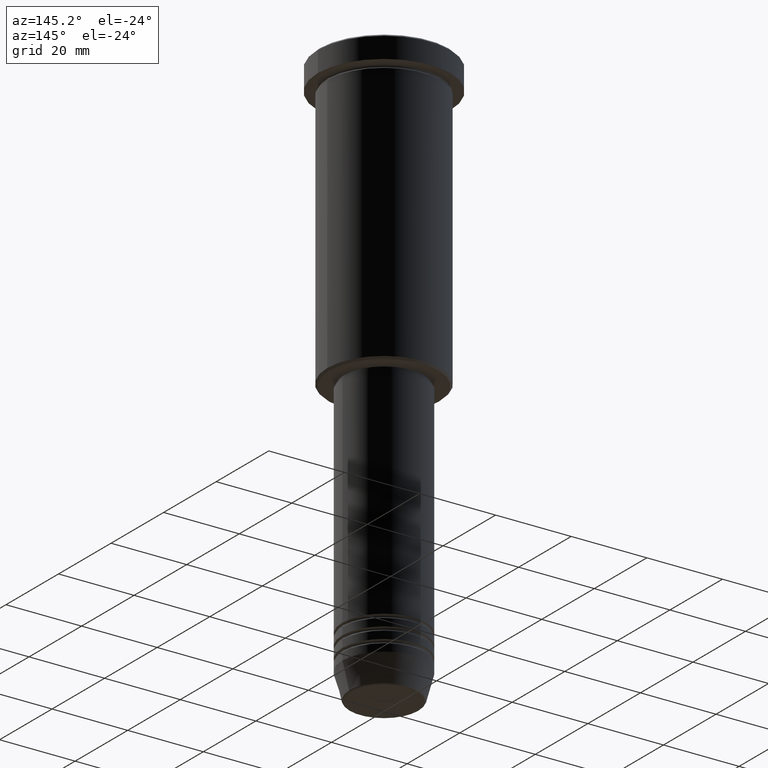
[diagram: clean part render]
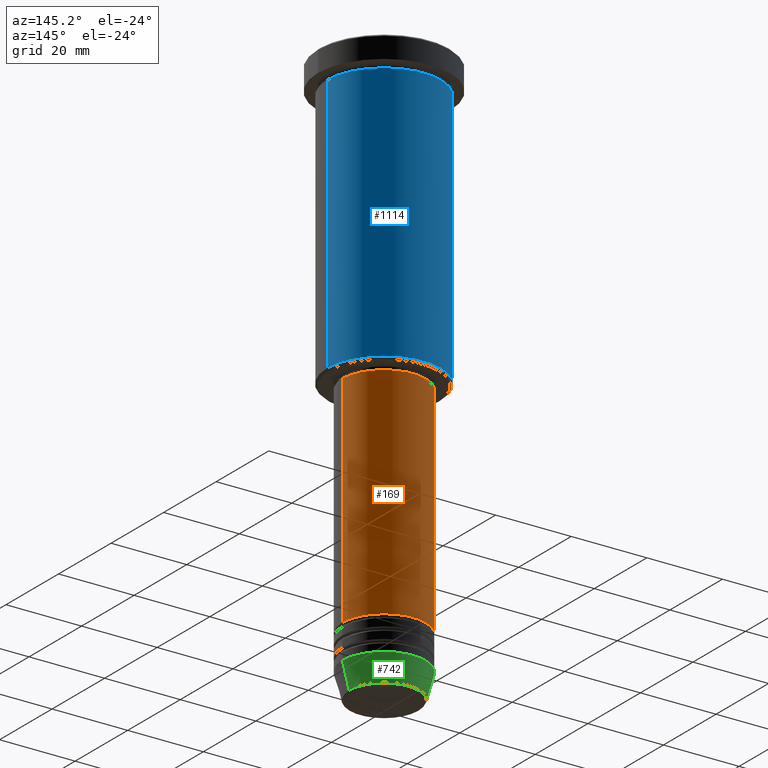
[diagram: same view with three faces highlighted in distinct colors, each labeled with its STEP entity id]
A machine part, auxiliary view with three faces highlighted in distinct colors.
Their STEP definitions:

[orange] entity #169 — the highlighted cylindrical surface (partial cylindrical patch) has radius 11 mm, axis along (-0, -0, 1).
#70 = FACE_OUTER_BOUND ( 'NONE', #994, .T. ) ;
#134 = DIRECTION ( 'NONE',  ( -0.000000000000000000, -0.000000000000000000, 1.000000000000000000 ) ) ;
#147 = AXIS2_PLACEMENT_3D ( 'NONE', #1156, #421, #802 ) ;
#150 = VECTOR ( 'NONE', #1155, 1000.000000000000000 ) ;
#169 = ADVANCED_FACE ( 'NONE', ( #70 ), #256, .T. ) ;
#238 = EDGE_CURVE ( 'NONE', #798, #670, #270, .T. ) ;
#248 = AXIS2_PLACEMENT_3D ( 'NONE', #710, #502, #864 ) ;
#256 = CYLINDRICAL_SURFACE ( 'NONE', #147, 11.00000000000000000 ) ;
#269 = VERTEX_POINT ( 'NONE', #1020 ) ;
#270 = LINE ( 'NONE', #633, #626 ) ;
#279 = CARTESIAN_POINT ( 'NONE',  ( -11.00000000000000000, 1.347111479062088405E-15, -76.99999999999998579 ) ) ;
#409 = LINE ( 'NONE', #871, #150 ) ;
#421 = DIRECTION ( 'NONE',  ( -0.000000000000000000, -0.000000000000000000, 1.000000000000000000 ) ) ;
#454 = AXIS2_PLACEMENT_3D ( 'NONE', #1051, #134, #701 ) ;
#484 = EDGE_CURVE ( 'NONE', #798, #269, #831, .T. ) ;
#502 = DIRECTION ( 'NONE',  ( -0.000000000000000000, -0.000000000000000000, 1.000000000000000000 ) ) ;
#533 = EDGE_CURVE ( 'NONE', #269, #827, #409, .T. ) ;
#626 = VECTOR ( 'NONE', #1180, 1000.000000000000000 ) ;
#633 = CARTESIAN_POINT ( 'NONE',  ( 11.00000000000000000, 0.000000000000000000, 0.000000000000000000 ) ) ;
#670 = VERTEX_POINT ( 'NONE', #770 ) ;
#701 = DIRECTION ( 'NONE',  ( 1.000000000000000000, 0.000000000000000000, 0.000000000000000000 ) ) ;
#710 = CARTESIAN_POINT ( 'NONE',  ( 0.000000000000000000, 0.000000000000000000, -134.9999999999999432 ) ) ;
#758 = ORIENTED_EDGE ( 'NONE', *, *, #1167, .F. ) ;
#770 = CARTESIAN_POINT ( 'NONE',  ( 11.00000000000000000, 0.000000000000000000, -76.99999999999998579 ) ) ;
#798 = VERTEX_POINT ( 'NONE', #858 ) ;
#802 = DIRECTION ( 'NONE',  ( 1.000000000000000000, 0.000000000000000000, 0.000000000000000000 ) ) ;
#815 = CIRCLE ( 'NONE', #454, 11.00000000000000000 ) ;
#827 = VERTEX_POINT ( 'NONE', #279 ) ;
#831 = CIRCLE ( 'NONE', #248, 11.00000000000000000 ) ;
#858 = CARTESIAN_POINT ( 'NONE',  ( 11.00000000000000000, 0.000000000000000000, -134.9999999999999432 ) ) ;
#864 = DIRECTION ( 'NONE',  ( 1.000000000000000000, 0.000000000000000000, 0.000000000000000000 ) ) ;
#871 = CARTESIAN_POINT ( 'NONE',  ( -11.00000000000000000, 1.347111479062088405E-15, 0.000000000000000000 ) ) ;
#877 = ORIENTED_EDGE ( 'NONE', *, *, #533, .T. ) ;
#994 = EDGE_LOOP ( 'NONE', ( #1121, #877, #758, #1017 ) ) ;
#1017 = ORIENTED_EDGE ( 'NONE', *, *, #238, .F. ) ;
#1020 = CARTESIAN_POINT ( 'NONE',  ( -11.00000000000000000, 1.347111479062088405E-15, -134.9999999999999432 ) ) ;
#1051 = CARTESIAN_POINT ( 'NONE',  ( 0.000000000000000000, 0.000000000000000000, -76.99999999999998579 ) ) ;
#1121 = ORIENTED_EDGE ( 'NONE', *, *, #484, .T. ) ;
#1155 = DIRECTION ( 'NONE',  ( -0.000000000000000000, -0.000000000000000000, 1.000000000000000000 ) ) ;
#1156 = CARTESIAN_POINT ( 'NONE',  ( 0.000000000000000000, 0.000000000000000000, 0.000000000000000000 ) ) ;
#1167 = EDGE_CURVE ( 'NONE', #670, #827, #815, .T. ) ;
#1180 = DIRECTION ( 'NONE',  ( -0.000000000000000000, -0.000000000000000000, 1.000000000000000000 ) ) ;

[blue] entity #1114 — the highlighted cylindrical surface (partial cylindrical patch) has radius 15 mm, axis along (-0, -0, 1).
#44 = EDGE_CURVE ( 'NONE', #242, #168, #763, .T. ) ;
#52 = EDGE_LOOP ( 'NONE', ( #1131, #589, #105, #116 ) ) ;
#105 = ORIENTED_EDGE ( 'NONE', *, *, #998, .F. ) ;
#111 = AXIS2_PLACEMENT_3D ( 'NONE', #386, #190, #201 ) ;
#116 = ORIENTED_EDGE ( 'NONE', *, *, #44, .F. ) ;
#168 = VERTEX_POINT ( 'NONE', #1071 ) ;
#185 = CIRCLE ( 'NONE', #628, 15.00000000000000000 ) ;
#190 = DIRECTION ( 'NONE',  ( -0.000000000000000000, -0.000000000000000000, 1.000000000000000000 ) ) ;
#201 = DIRECTION ( 'NONE',  ( -1.000000000000000000, 0.000000000000000000, 0.000000000000000000 ) ) ;
#217 = DIRECTION ( 'NONE',  ( -0.000000000000000000, -0.000000000000000000, 1.000000000000000000 ) ) ;
#242 = VERTEX_POINT ( 'NONE', #995 ) ;
#253 = CARTESIAN_POINT ( 'NONE',  ( -15.00000000000000000, 1.836970198721029589E-15, 0.000000000000000000 ) ) ;
#257 = EDGE_CURVE ( 'NONE', #679, #660, #1067, .T. ) ;
#365 = CARTESIAN_POINT ( 'NONE',  ( 0.000000000000000000, 0.000000000000000000, 0.000000000000000000 ) ) ;
#383 = CARTESIAN_POINT ( 'NONE',  ( -15.00000000000000000, 1.836970198721029589E-15, -75.49999999999997158 ) ) ;
#386 = CARTESIAN_POINT ( 'NONE',  ( 0.000000000000000000, 0.000000000000000000, -75.49999999999997158 ) ) ;
#389 = VECTOR ( 'NONE', #979, 1000.000000000000000 ) ;
#400 = CARTESIAN_POINT ( 'NONE',  ( -15.00000000000000000, 1.836970198721029589E-15, -6.999999999999995559 ) ) ;
#410 = AXIS2_PLACEMENT_3D ( 'NONE', #365, #217, #738 ) ;
#485 = CARTESIAN_POINT ( 'NONE',  ( 15.00000000000000000, 0.000000000000000000, 0.000000000000000000 ) ) ;
#532 = DIRECTION ( 'NONE',  ( -0.000000000000000000, -0.000000000000000000, 1.000000000000000000 ) ) ;
#589 = ORIENTED_EDGE ( 'NONE', *, *, #257, .T. ) ;
#628 = AXIS2_PLACEMENT_3D ( 'NONE', #1073, #532, #891 ) ;
#646 = FACE_OUTER_BOUND ( 'NONE', #52, .T. ) ;
#660 = VERTEX_POINT ( 'NONE', #400 ) ;
#671 = CYLINDRICAL_SURFACE ( 'NONE', #410, 15.00000000000000000 ) ;
#679 = VERTEX_POINT ( 'NONE', #383 ) ;
#695 = DIRECTION ( 'NONE',  ( -0.000000000000000000, -0.000000000000000000, 1.000000000000000000 ) ) ;
#702 = VECTOR ( 'NONE', #695, 1000.000000000000000 ) ;
#738 = DIRECTION ( 'NONE',  ( 1.000000000000000000, 0.000000000000000000, 0.000000000000000000 ) ) ;
#763 = LINE ( 'NONE', #485, #702 ) ;
#853 = CIRCLE ( 'NONE', #111, 15.00000000000000000 ) ;
#891 = DIRECTION ( 'NONE',  ( 1.000000000000000000, 0.000000000000000000, 0.000000000000000000 ) ) ;
#979 = DIRECTION ( 'NONE',  ( -0.000000000000000000, -0.000000000000000000, 1.000000000000000000 ) ) ;
#995 = CARTESIAN_POINT ( 'NONE',  ( 15.00000000000000000, 0.000000000000000000, -75.49999999999997158 ) ) ;
#998 = EDGE_CURVE ( 'NONE', #168, #660, #185, .T. ) ;
#1067 = LINE ( 'NONE', #253, #389 ) ;
#1071 = CARTESIAN_POINT ( 'NONE',  ( 15.00000000000000000, 0.000000000000000000, -6.999999999999995559 ) ) ;
#1073 = CARTESIAN_POINT ( 'NONE',  ( 0.000000000000000000, 0.000000000000000000, -6.999999999999995559 ) ) ;
#1077 = EDGE_CURVE ( 'NONE', #242, #679, #853, .T. ) ;
#1114 = ADVANCED_FACE ( 'NONE', ( #646 ), #671, .T. ) ;
#1131 = ORIENTED_EDGE ( 'NONE', *, *, #1077, .T. ) ;

[green] entity #742 — the highlighted conical surface has half-angle 15 deg.
#7 = EDGE_LOOP ( 'NONE', ( #88, #616, #103, #712 ) ) ;
#18 = VERTEX_POINT ( 'NONE', #1041 ) ;
#19 = DIRECTION ( 'NONE',  ( 1.000000000000000000, 0.000000000000000000, 0.000000000000000000 ) ) ;
#38 = VERTEX_POINT ( 'NONE', #138 ) ;
#88 = ORIENTED_EDGE ( 'NONE', *, *, #919, .T. ) ;
#103 = ORIENTED_EDGE ( 'NONE', *, *, #936, .F. ) ;
#115 = LINE ( 'NONE', #659, #228 ) ;
#119 = CARTESIAN_POINT ( 'NONE',  ( 11.00000000000000000, 0.000000000000000000, -144.0000000000000000 ) ) ;
#138 = CARTESIAN_POINT ( 'NONE',  ( -11.00000000000000000, 1.347111479062088405E-15, -144.0000000000000000 ) ) ;
#155 = LINE ( 'NONE', #526, #170 ) ;
#170 = VECTOR ( 'NONE', #514, 1000.000000000000000 ) ;
#228 = VECTOR ( 'NONE', #565, 1000.000000000000000 ) ;
#342 = EDGE_CURVE ( 'NONE', #18, #38, #115, .T. ) ;
#360 = DIRECTION ( 'NONE',  ( -0.000000000000000000, -0.000000000000000000, 1.000000000000000000 ) ) ;
#393 = AXIS2_PLACEMENT_3D ( 'NONE', #904, #360, #1094 ) ;
#418 = VERTEX_POINT ( 'NONE', #119 ) ;
#507 = CARTESIAN_POINT ( 'NONE',  ( 0.000000000000000000, 0.000000000000000000, -144.0000000000000000 ) ) ;
#514 = DIRECTION ( 'NONE',  ( 0.2588190451025213501, 0.000000000000000000, 0.9659258262890680902 ) ) ;
#526 = CARTESIAN_POINT ( 'NONE',  ( 11.00000000000000000, 0.000000000000000000, -144.0000000000000000 ) ) ;
#541 = EDGE_CURVE ( 'NONE', #736, #418, #155, .T. ) ;
#553 = DIRECTION ( 'NONE',  ( -0.000000000000000000, -0.000000000000000000, 1.000000000000000000 ) ) ;
#565 = DIRECTION ( 'NONE',  ( -0.2588190451025213501, 3.169619151431772337E-17, 0.9659258262890680902 ) ) ;
#591 = AXIS2_PLACEMENT_3D ( 'NONE', #507, #761, #772 ) ;
#616 = ORIENTED_EDGE ( 'NONE', *, *, #342, .T. ) ;
#659 = CARTESIAN_POINT ( 'NONE',  ( -11.00000000000000000, 1.347111479062088405E-15, -144.0000000000000000 ) ) ;
#667 = CIRCLE ( 'NONE', #393, 11.00000000000000000 ) ;
#692 = FACE_OUTER_BOUND ( 'NONE', #7, .T. ) ;
#712 = ORIENTED_EDGE ( 'NONE', *, *, #541, .F. ) ;
#722 = AXIS2_PLACEMENT_3D ( 'NONE', #997, #553, #19 ) ;
#736 = VERTEX_POINT ( 'NONE', #861 ) ;
#742 = ADVANCED_FACE ( 'NONE', ( #692 ), #971, .T. ) ;
#761 = DIRECTION ( 'NONE',  ( -0.000000000000000000, -0.000000000000000000, 1.000000000000000000 ) ) ;
#772 = DIRECTION ( 'NONE',  ( 1.000000000000000000, 0.000000000000000000, 0.000000000000000000 ) ) ;
#861 = CARTESIAN_POINT ( 'NONE',  ( 9.223655072137194821, 0.000000000000000000, -150.6294095225512137 ) ) ;
#904 = CARTESIAN_POINT ( 'NONE',  ( 0.000000000000000000, 0.000000000000000000, -144.0000000000000000 ) ) ;
#919 = EDGE_CURVE ( 'NONE', #736, #18, #1004, .T. ) ;
#936 = EDGE_CURVE ( 'NONE', #418, #38, #667, .T. ) ;
#971 = CONICAL_SURFACE ( 'NONE', #591, 11.00000000000000000, 0.2617993877991500740 ) ;
#997 = CARTESIAN_POINT ( 'NONE',  ( 0.000000000000000000, 0.000000000000000000, -150.6294095225512137 ) ) ;
#1004 = CIRCLE ( 'NONE', #722, 9.223655072137194821 ) ;
#1041 = CARTESIAN_POINT ( 'NONE',  ( -9.223655072137194821, 1.238341722557647596E-15, -150.6294095225512137 ) ) ;
#1094 = DIRECTION ( 'NONE',  ( 1.000000000000000000, 0.000000000000000000, 0.000000000000000000 ) ) ;